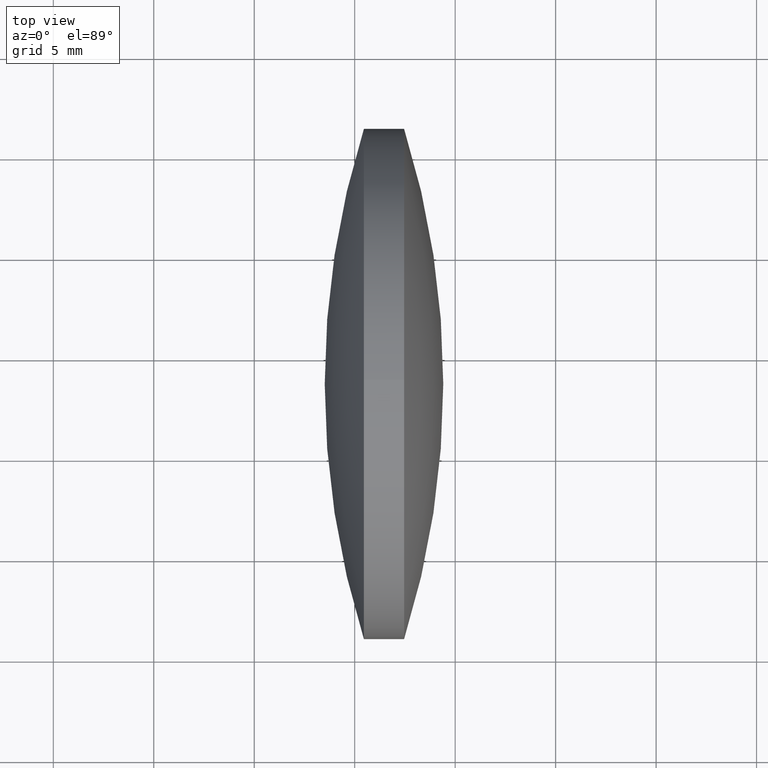
[diagram: clean part render]
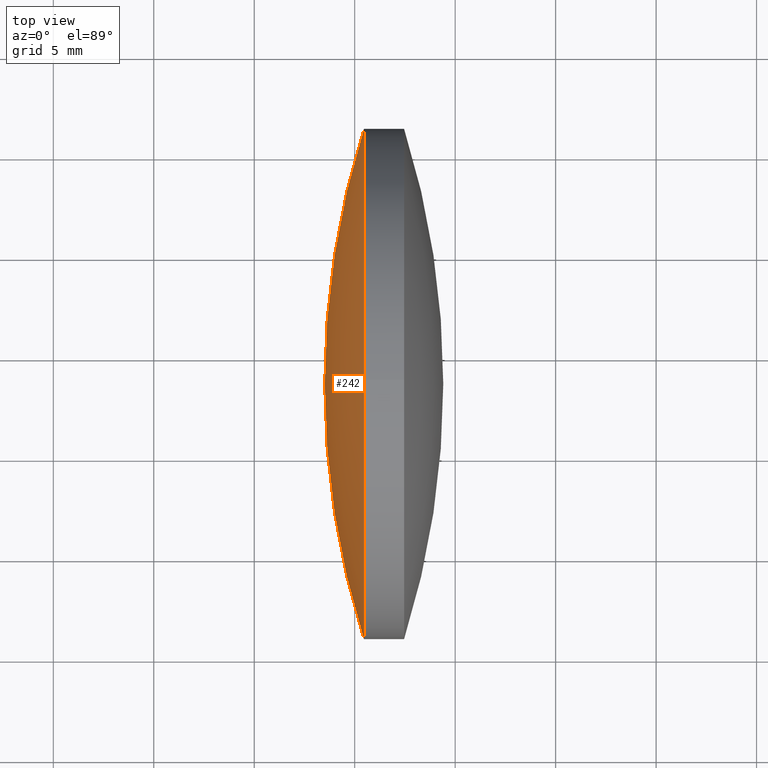
[diagram: same view with one face highlighted and labeled with its STEP entity id]
A machine part, top view. The second image highlights one B-rep face of the part: STEP entity #242.
In plain terms, the highlighted spherical surface has radius 42.3248 mm.
Its self-contained STEP definition (entity closure, byte-faithful):
#12 = AXIS2_PLACEMENT_3D ( 'NONE', #31, #218, #34 ) ;
#14 = CARTESIAN_POINT ( 'NONE',  ( 85.45852234609111500, 35.91611302318477100, -1.555301434917135700E-015 ) ) ;
#16 = CIRCLE ( 'NONE', #179, 12.69999999999999600 ) ;
#31 = CARTESIAN_POINT ( 'NONE',  ( 125.8329684218269200, 48.61611302318474500, 0.0000000000000000000 ) ) ;
#34 = DIRECTION ( 'NONE',  ( 1.000000000000000000, 0.0000000000000000000, 0.0000000000000000000 ) ) ;
#48 = CIRCLE ( 'NONE', #223, 12.69999999999999600 ) ;
#49 = AXIS2_PLACEMENT_3D ( 'NONE', #191, #255, #229 ) ;
#64 = FACE_OUTER_BOUND ( 'NONE', #129, .T. ) ;
#68 = DIRECTION ( 'NONE',  ( 0.0000000000000000000, 1.000000000000000000, 1.224646799147353500E-016 ) ) ;
#74 = VERTEX_POINT ( 'NONE', #14 ) ;
#91 = CIRCLE ( 'NONE', #12, 42.32476693287864600 ) ;
#92 = CARTESIAN_POINT ( 'NONE',  ( 85.45852234609111500, 48.61611302318478100, 12.69999999999999600 ) ) ;
#122 = EDGE_CURVE ( 'NONE', #187, #224, #16, .T. ) ;
#129 = EDGE_LOOP ( 'NONE', ( #338, #306, #137, #285 ) ) ;
#134 = CARTESIAN_POINT ( 'NONE',  ( 85.45852234609111500, 61.31611302318476200, 0.0000000000000000000 ) ) ;
#137 = ORIENTED_EDGE ( 'NONE', *, *, #122, .T. ) ;
#142 = DIRECTION ( 'NONE',  ( -1.000000000000000000, -0.0000000000000000000, -0.0000000000000000000 ) ) ;
#145 = SPHERICAL_SURFACE ( 'NONE', #49, 42.32476693287866000 ) ;
#164 = EDGE_CURVE ( 'NONE', #74, #321, #190, .T. ) ;
#174 = CARTESIAN_POINT ( 'NONE',  ( 125.8329684218269200, 48.61611302318474500, 0.0000000000000000000 ) ) ;
#179 = AXIS2_PLACEMENT_3D ( 'NONE', #225, #142, #283 ) ;
#187 = VERTEX_POINT ( 'NONE', #92 ) ;
#190 = CIRCLE ( 'NONE', #253, 42.32476693287866000 ) ;
#191 = CARTESIAN_POINT ( 'NONE',  ( 125.8329684218269200, 48.61611302318474500, 0.0000000000000000000 ) ) ;
#200 = CARTESIAN_POINT ( 'NONE',  ( 83.50820148894825900, 48.61611302318474500, 0.0000000000000000000 ) ) ;
#205 = DIRECTION ( 'NONE',  ( 0.0000000000000000000, 1.224646799147353200E-016, -1.000000000000000000 ) ) ;
#209 = EDGE_CURVE ( 'NONE', #224, #321, #91, .T. ) ;
#218 = DIRECTION ( 'NONE',  ( -0.0000000000000000000, 0.0000000000000000000, 1.000000000000000000 ) ) ;
#223 = AXIS2_PLACEMENT_3D ( 'NONE', #274, #295, #296 ) ;
#224 = VERTEX_POINT ( 'NONE', #134 ) ;
#225 = CARTESIAN_POINT ( 'NONE',  ( 85.45852234609111500, 48.61611302318478100, 0.0000000000000000000 ) ) ;
#229 = DIRECTION ( 'NONE',  ( 0.0000000000000000000, 1.000000000000000000, 0.0000000000000000000 ) ) ;
#242 = ADVANCED_FACE ( 'NONE', ( #64 ), #145, .T. ) ;
#253 = AXIS2_PLACEMENT_3D ( 'NONE', #174, #205, #68 ) ;
#255 = DIRECTION ( 'NONE',  ( -0.0000000000000000000, 0.0000000000000000000, -1.000000000000000000 ) ) ;
#274 = CARTESIAN_POINT ( 'NONE',  ( 85.45852234609111500, 48.61611302318478100, 0.0000000000000000000 ) ) ;
#283 = DIRECTION ( 'NONE',  ( 0.0000000000000000000, 0.0000000000000000000, 1.000000000000000000 ) ) ;
#285 = ORIENTED_EDGE ( 'NONE', *, *, #209, .T. ) ;
#295 = DIRECTION ( 'NONE',  ( -1.000000000000000000, -0.0000000000000000000, -0.0000000000000000000 ) ) ;
#296 = DIRECTION ( 'NONE',  ( 0.0000000000000000000, 0.0000000000000000000, 1.000000000000000000 ) ) ;
#306 = ORIENTED_EDGE ( 'NONE', *, *, #337, .T. ) ;
#321 = VERTEX_POINT ( 'NONE', #200 ) ;
#337 = EDGE_CURVE ( 'NONE', #74, #187, #48, .T. ) ;
#338 = ORIENTED_EDGE ( 'NONE', *, *, #164, .F. ) ;